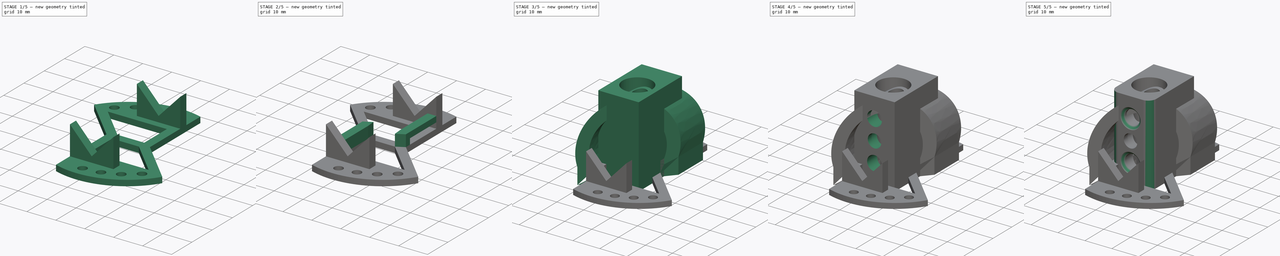
[diagram: build sequence overview — one tinted view per stage of 5, left to right]
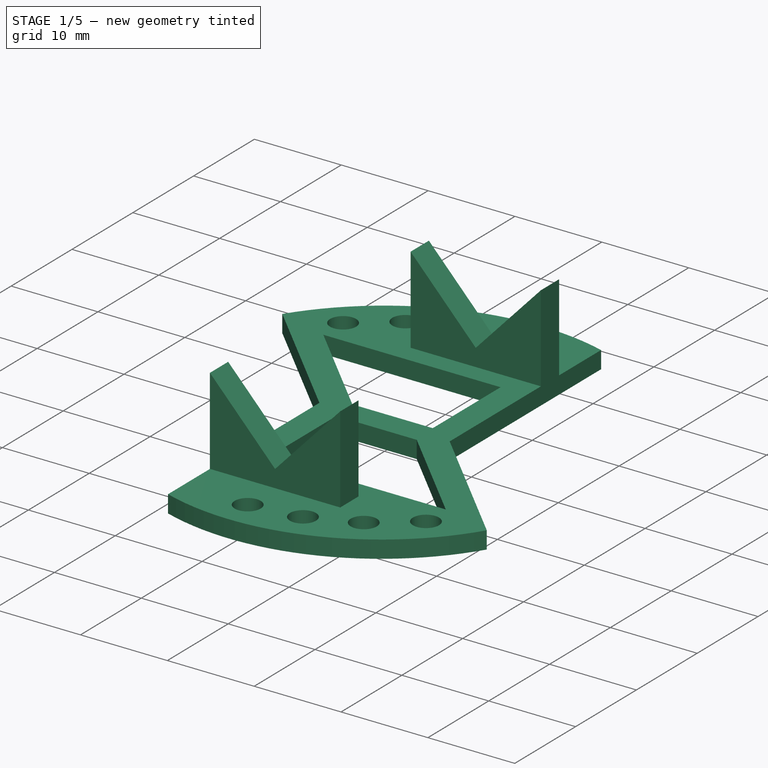
[diagram: stage 1 of 5 — iso view after this stage's code; geometry added in this stage tinted green]
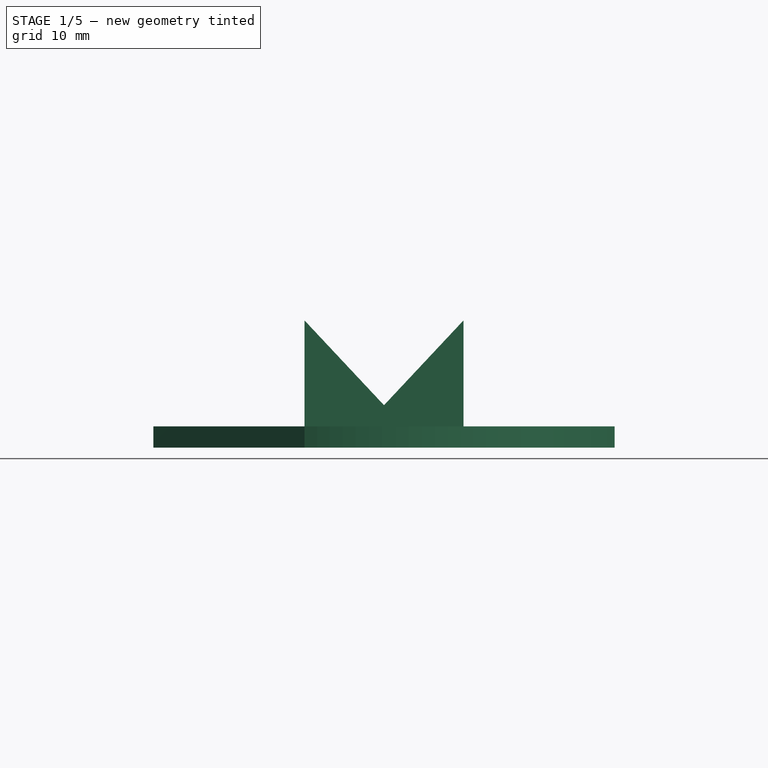
[diagram: stage 1 of 5 — front view after this stage's code; geometry added in this stage tinted green]
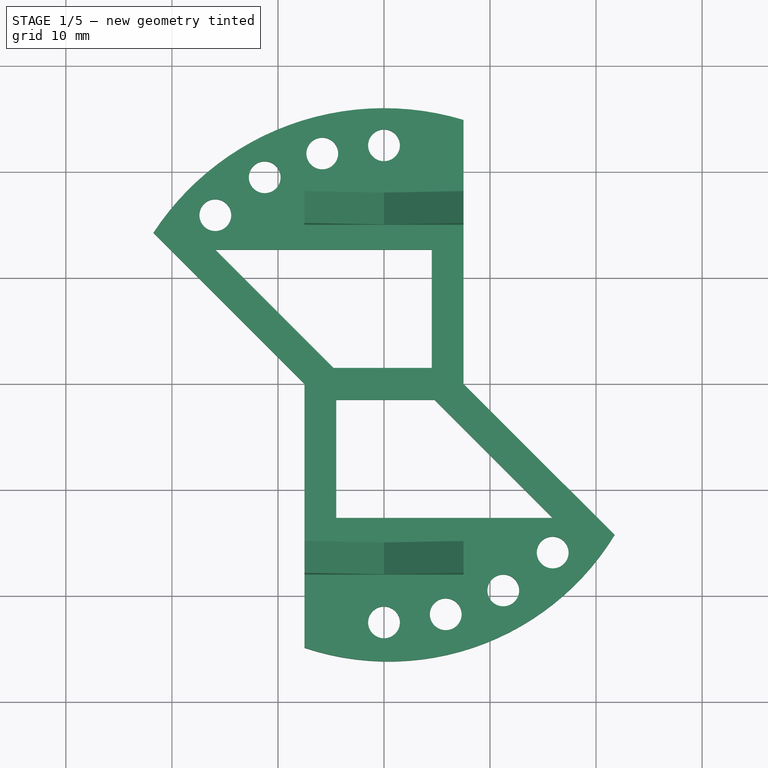
[diagram: stage 1 of 5 — top view after this stage's code; geometry added in this stage tinted green]
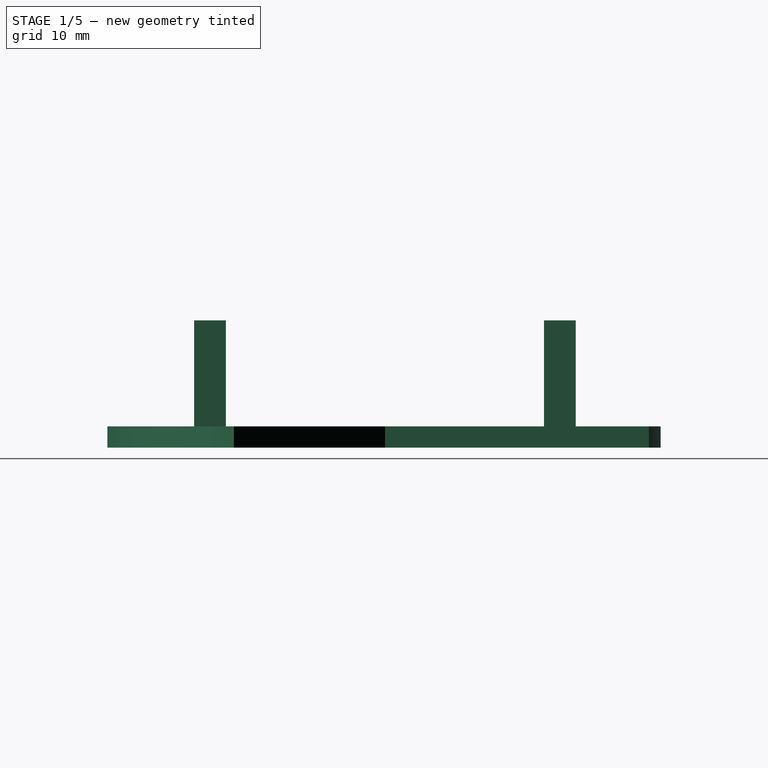
[diagram: stage 1 of 5 — right view after this stage's code; geometry added in this stage tinted green]
FCSTD DOCUMENT  (FreeCAD 0.19R24291 (Git))
Label: plotter-pen-holder-adj
License: All rights reserved
LicenseURL: http://en.wikipedia.org/wiki/All_rights_reserved
objects: Sketcher::SketchObject×14, PartDesign::Pocket×8, PartDesign::Pad×5, PartDesign::Fillet×2, PartDesign::Body×2, App::Part×2, PartDesign::Chamfer×1, PartDesign::Mirrored×1, PartDesign::Plane×1, PartDesign::AdditivePipe×1
note: 52 computed .brp shape members not serialized (recipe doc carries the construction recipe); baked Part::Feature solids carry a one-line shape summary decoded from their .brp

FEATURE [PartDesign::Body] Body
  Group = -> [Sketch,Pad,Sketch001,Pocket,Sketch002,Pocket001,Sketch003,Pocket002,Sketch004,Pocket003,Fillet,Chamfer,Fillet001]
  Origin = -> Origin001
  Tip = -> Fillet001
FEATURE [App::Part] Part  label="PenHolder90"
  Group = -> [Body]
  Origin = -> Origin
FEATURE [Sketcher::SketchObject] Sketch005
  FullyConstrained = true
  MapMode = 5
  Support = -> [XY_Plane003]
  sketch-geometry (28):
    g0: Circle CenterX=0 CenterY=0 CenterZ=0 NormalX=0 NormalY=0 NormalZ=1 AngleXU=0 Radius=22.5
    g1: Circle CenterX=2.7e-15 CenterY=22.5 CenterZ=0 NormalX=0 NormalY=0 NormalZ=1 AngleXU=0 Radius=1.5
    g2: Circle CenterX=-2.7e-15 CenterY=-22.5 CenterZ=0 NormalX=0 NormalY=0 NormalZ=1 AngleXU=0 Radius=1.5
    g3: Circle CenterX=5.82343 CenterY=-21.7333 CenterZ=0 NormalX=0 NormalY=0 NormalZ=1 AngleXU=0 Radius=1.5
    g4: Circle CenterX=11.25 CenterY=-19.4856 CenterZ=0 NormalX=0 NormalY=0 NormalZ=1 AngleXU=0 Radius=1.5
    g5: Circle CenterX=15.9099 CenterY=-15.9099 CenterZ=0 NormalX=0 NormalY=0 NormalZ=1 AngleXU=0 Radius=1.5
    g6: Circle CenterX=-5.82343 CenterY=21.7333 CenterZ=0 NormalX=0 NormalY=0 NormalZ=1 AngleXU=0 Radius=1.5
    g7: Circle CenterX=-11.25 CenterY=19.4856 CenterZ=0 NormalX=0 NormalY=0 NormalZ=1 AngleXU=0 Radius=1.5
    g8: Circle CenterX=-15.9099 CenterY=15.9099 CenterZ=0 NormalX=0 NormalY=0 NormalZ=1 AngleXU=0 Radius=1.5
    g9: LineSegment StartX=-5.82343 StartY=21.7333 StartZ=0 EndX=0 EndY=0 EndZ=0
    g10: LineSegment StartX=-11.25 StartY=19.4856 StartZ=0 EndX=0 EndY=0 EndZ=0
    g11: LineSegment StartX=-15.9099 StartY=15.9099 StartZ=0 EndX=0 EndY=0 EndZ=0
    g12: LineSegment StartX=2.7e-15 StartY=22.5 StartZ=0 EndX=0 EndY=0 EndZ=0
    g13: LineSegment StartX=7.5 StartY=24.8948 StartZ=0 EndX=7.5 EndY=0 EndZ=0
    g14: LineSegment StartX=7.5 StartY=0 StartZ=0 EndX=21.7483 EndY=-14.2483 EndZ=0
    g15: LineSegment StartX=-21.7483 StartY=14.2483 StartZ=0 EndX=-7.5 EndY=0 EndZ=0
    g16: LineSegment StartX=-7.5 StartY=0 StartZ=0 EndX=-7.5 EndY=-24.8948 EndZ=0
    g17: ArcOfCircle CenterX=0 CenterY=0 CenterZ=0 NormalX=0 NormalY=0 NormalZ=1 AngleXU=0 Radius=26 StartAngle=1.27818 EndAngle=2.56161
    g18: ArcOfCircle CenterX=0.431869 CenterY=-1.18644 CenterZ=0 NormalX=0 NormalY=0 NormalZ=1 AngleXU=0 Radius=25 StartAngle=4.38953 EndAngle=5.73344
    g19: LineSegment StartX=4.5 StartY=12.6525 StartZ=0 EndX=4.5 EndY=1.5 EndZ=0
    g20: LineSegment StartX=4.75736 StartY=-1.5 StartZ=0 EndX=15.9099 EndY=-12.6525 EndZ=0
    g21: LineSegment StartX=-15.9099 StartY=12.6525 StartZ=0 EndX=-4.75736 EndY=1.5 EndZ=0
    g22: LineSegment StartX=-4.5 StartY=-1.5 StartZ=0 EndX=-4.5 EndY=-12.6525 EndZ=0
    g23: LineSegment StartX=4.75736 StartY=-1.5 StartZ=0 EndX=-4.5 EndY=-1.5 EndZ=0
    g24: LineSegment StartX=-4.75736 StartY=1.5 StartZ=0 EndX=4.5 EndY=1.5 EndZ=0
    g25: LineSegment StartX=7.5 StartY=0 StartZ=0 EndX=5.37868 EndY=-2.12132 EndZ=0
    g26: LineSegment StartX=-15.9099 StartY=12.6525 StartZ=0 EndX=4.5 EndY=12.6525 EndZ=0
    g27: LineSegment StartX=-4.5 StartY=-12.6525 StartZ=0 EndX=15.9099 EndY=-12.6525 EndZ=0
  constraints (64):
    c: Coincident(g0,g-1)
    c: Diameter(g0) = 45
    c: PointOnObject(g1,g0)
    c: PointOnObject(g3,g0)
    c: PointOnObject(g4,g0)
    c: PointOnObject(g5,g0)
    c: Diameter(g1) = 3
    c: Equal(g1, g2-g8) x7
    c: Symmetric(g1,g2,g-1)
    c: Symmetric(g6,g3,g-1)
    c: Symmetric(g7,g4,g-1)
    c: Symmetric(g8,g5,g-1)
    c: Coincident(g9,g6)
    c: Coincident(g9,g-1)
    c: Coincident(g10,g7)
    c: Coincident(g10,g-1)
    c: Coincident(g11,g8)
    c: Coincident(g11,g-1)
    c: Angle(g-2,g9) = 0.261799
    c: Angle(g9,g10) = 0.261799
    c: Angle(g10,g11) = 0.261799
    c: Coincident(g12,g1)
    c: Coincident(g12,g-1)
    c: Angle(g12,g9) = 0.261799
    c: PointOnObject(g13,g-1)
    c: Vertical(g13)
    c: Coincident(g13,g14)
    c: Coincident(g15,g16)
    c: Coincident(g17,g13)
    c: Coincident(g18,g16)
    c: Coincident(g18,g14)
    c: Diameter(g17) = 52
    c: Diameter(g18) = 50
    c: Symmetric(g13,g16,g-1)
    c: Symmetric(g15,g14,g-1)
    c: Symmetric(g15,g13,g-1)
    c: DistanceX(g15,g13) = 15
    c: Coincident(g17,g-1)
    c: Coincident(g15,g17)
    c: Parallel(g11,g15)
    c: Vertical(g19)
    c: Symmetric(g21,g20,g17)
    c: Coincident(g23,g20)
    c: Coincident(g24,g21)
    c: Coincident(g19,g24)
    c: Coincident(g22,g23)
    c: PointOnObject(g25,g20)
    c: Coincident(g25,g13)
    c: Perpendicular(g14,g25)
    c: Distance(g25) = 3
    c: Horizontal(g24)
    c: Parallel(g20,g14)
    c: Symmetric(g20,g21,g17)
    c: DistanceX(g19,g13) = 3
    c: Symmetric(g19,g22,g17)
    c: DistanceY(g20,g19) = 3
    c: Coincident(g19,g26)
    c: Coincident(g22,g27)
    c: Vertical(g22)
    c: Coincident(g21,g26)
    c: Coincident(g20,g27)
    c: Horizontal(g27)
    c: Horizontal(g26)
    c: Vertical(g8,g21)
FEATURE [PartDesign::Pad] Pad001
  Direction = (1,1,1)
  Length = 2
  Length2 = 100
  Profile = -> Sketch005
  Type = 0
FEATURE [Sketcher::SketchObject] Sketch006
  ExternalGeometry = -> [Pad001]
  FullyConstrained = true
  MapMode = 5
  Placement = pos=(0,0,2) rot=(0,0,1;0rad)
  Support = -> [Pad001]
  sketch-geometry (4):
    g0: LineSegment StartX=-7.5 StartY=18 StartZ=0 EndX=7.5 EndY=18 EndZ=0
    g1: LineSegment StartX=7.5 StartY=18 StartZ=0 EndX=7.5 EndY=15 EndZ=0
    g2: LineSegment StartX=7.5 StartY=15 StartZ=0 EndX=-7.5 EndY=15 EndZ=0
    g3: LineSegment StartX=-7.5 StartY=15 StartZ=0 EndX=-7.5 EndY=18 EndZ=0
  constraints (12):
    c: Coincident(g0,g1)
    c: Coincident(g1,g2)
    c: Coincident(g2,g3)
    c: Coincident(g3,g0)
    c: Horizontal(g0)
    c: Horizontal(g2)
    c: Vertical(g1)
    c: Vertical(g3)
    c: Vertical(g1,g-3)
    c: Vertical(g2,g-4)
    c: DistanceY(g1,g1) = 3
    c: DistanceY(g-1,g1) = 15
FEATURE [PartDesign::Pad] Pad002
  BaseFeature = -> Pad001
  Direction = (1,1,1)
  Length = 10
  Length2 = 100
  Profile = -> Sketch006
  Type = 0
FEATURE [PartDesign::Mirrored] Mirrored
  BaseFeature = -> Pad002
  MirrorPlane = -> XZ_Plane003
  Originals = -> [Pad002]
FEATURE [Sketcher::SketchObject] Sketch007
  ExternalGeometry = -> [Mirrored]
  FullyConstrained = true
  MapMode = 5
  Placement = pos=(0,18,0) rot=(0,0.707107,0.707107;3.14159rad)
  Support = -> [Mirrored]
  sketch-geometry (3):
    g0: LineSegment StartX=-7.5 StartY=12 StartZ=0 EndX=0 EndY=4 EndZ=0
    g1: LineSegment StartX=0 StartY=4 StartZ=0 EndX=7.5 EndY=12 EndZ=0
    g2: LineSegment StartX=7.5 StartY=12 StartZ=0 EndX=-7.5 EndY=12 EndZ=0
  constraints (8):
    c: Coincident(g-3,g0)
    c: PointOnObject(g0,g-2)
    c: Coincident(g0,g1)
    c: Coincident(g1,g-3)
    c: Coincident(g1,g2)
    c: PointOnObject(g2,g0)
    c: Horizontal(g2)
    c: DistanceY(g0,g1) = 8
FEATURE [PartDesign::Pocket] Pocket004
  BaseFeature = -> Mirrored
  Length = 5
  Length2 = 100
  Profile = -> Sketch007
  Type = 1
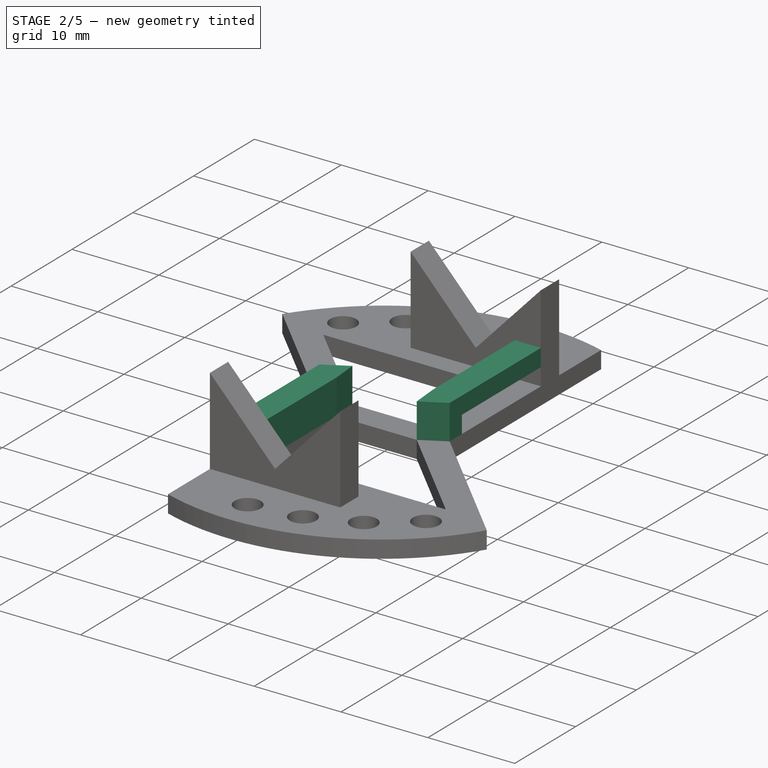
[diagram: stage 2 of 5 — iso view after this stage's code; geometry added in this stage tinted green]
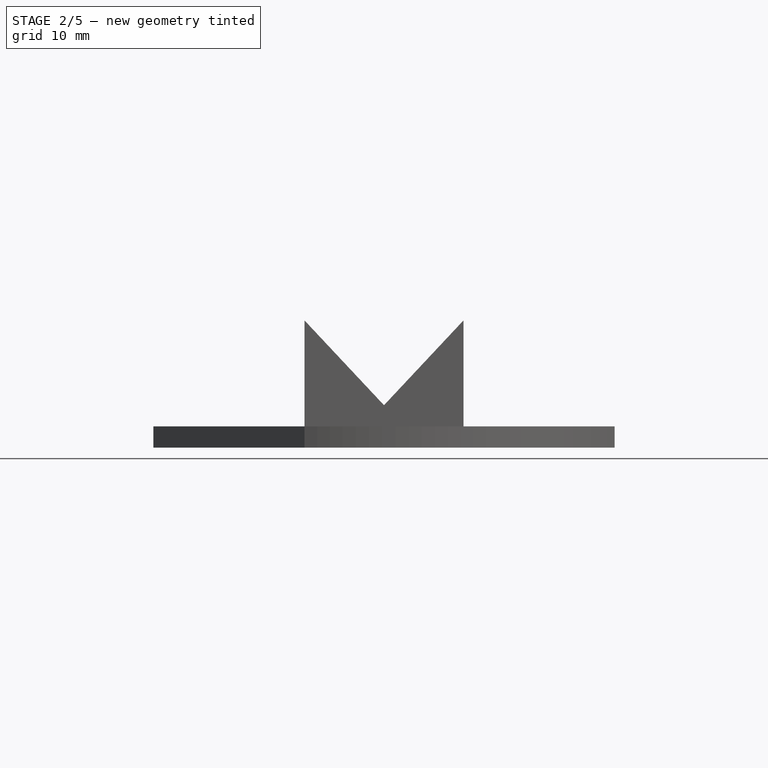
[diagram: stage 2 of 5 — front view after this stage's code; geometry added in this stage tinted green]
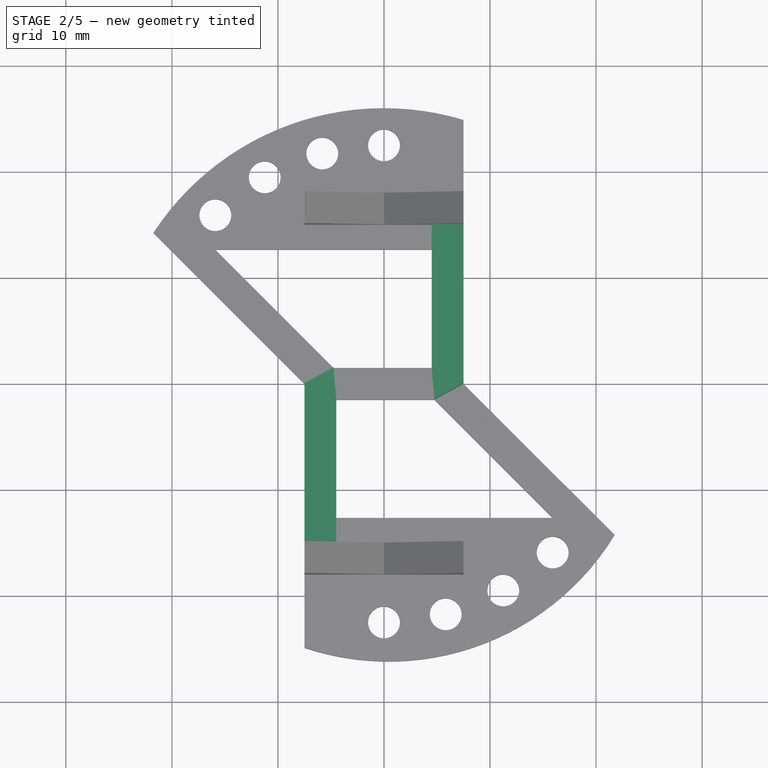
[diagram: stage 2 of 5 — top view after this stage's code; geometry added in this stage tinted green]
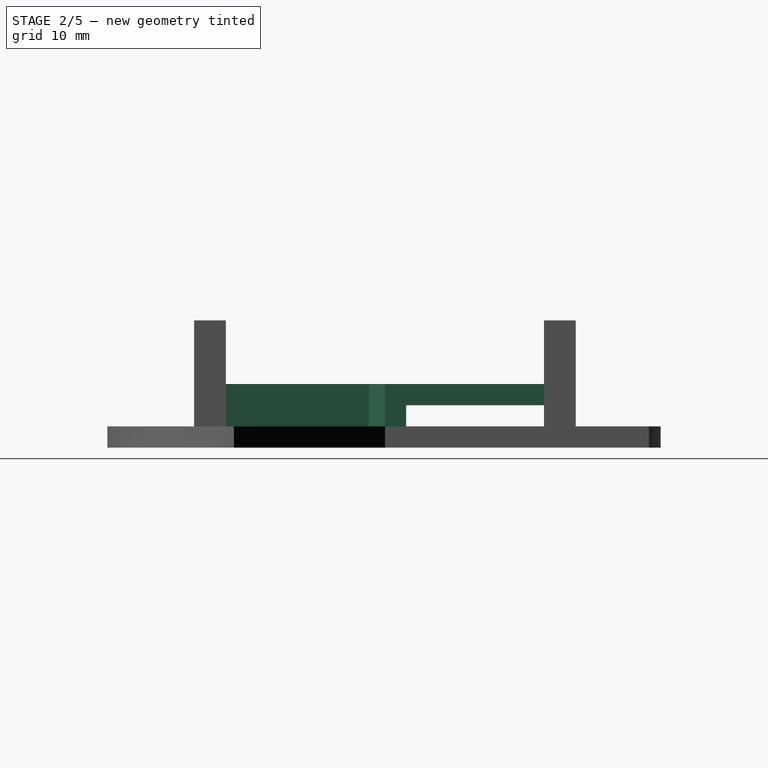
[diagram: stage 2 of 5 — right view after this stage's code; geometry added in this stage tinted green]
FEATURE [Sketcher::SketchObject] Sketch008
  ExternalGeometry = -> [Pocket004]
  FullyConstrained = true
  MapMode = 5
  Placement = pos=(0,0,2) rot=(0,0,1;0rad)
  Support = -> [Pocket004]
  sketch-geometry (5):
    g0: LineSegment StartX=4.5 StartY=15 StartZ=0 EndX=7.5 EndY=15 EndZ=0
    g1: LineSegment StartX=7.5 StartY=15 StartZ=0 EndX=7.5 EndY=0 EndZ=0
    g2: LineSegment StartX=7.5 StartY=0 StartZ=0 EndX=4.75736 EndY=-1.5 EndZ=0
    g3: LineSegment StartX=4.75736 StartY=-1.5 StartZ=0 EndX=4.5 EndY=1.5 EndZ=0
    g4: LineSegment StartX=4.5 StartY=1.5 StartZ=0 EndX=4.5 EndY=15 EndZ=0
  constraints (11):
    c: Coincident(g2,g3)
    c: Coincident(g0,g-4)
    c: Coincident(g3,g4)
    c: Coincident(g3,g-3)
    c: Coincident(g1,g2)
    c: Coincident(g1,g-4)
    c: Coincident(g2,g-5)
    c: Coincident(g0,g4)
    c: Horizontal(g0)
    c: PointOnObject(g-3,g4)
    c: Coincident(g0,g1)
FEATURE [PartDesign::Pad] Pad003
  BaseFeature = -> Pocket004
  Direction = (1,1,1)
  Length = 4
  Length2 = 100
  Profile = -> Sketch008
  Type = 0
FEATURE [Sketcher::SketchObject] Sketch009
  ExternalGeometry = -> [Pad003]
  FullyConstrained = true
  MapMode = 5
  Placement = pos=(7.5,0,0) rot=(0.57735,0.57735,0.57735;2.0944rad)
  Support = -> [Pad003]
  sketch-geometry (4):
    g0: LineSegment StartX=15 StartY=2 StartZ=0 EndX=2 EndY=2 EndZ=0
    g1: LineSegment StartX=2 StartY=2 StartZ=0 EndX=2 EndY=4 EndZ=0
    g2: LineSegment StartX=2 StartY=4 StartZ=0 EndX=15 EndY=4 EndZ=0
    g3: LineSegment StartX=15 StartY=4 StartZ=0 EndX=15 EndY=2 EndZ=0
  constraints (11):
    c: Coincident(g0,g1)
    c: Coincident(g1,g2)
    c: Coincident(g2,g3)
    c: Coincident(g3,g0)
    c: Horizontal(g0)
    c: Horizontal(g2)
    c: Vertical(g1)
    c: Vertical(g3)
    c: Coincident(g0,g-4)
    c: DistanceY(g3,g3) = 2
    c: DistanceX(g2,g2) = 13
FEATURE [PartDesign::Pocket] Pocket005
  BaseFeature = -> Pad003
  Length = 5
  Length2 = 100
  Profile = -> Sketch009
  Type = 2
FEATURE [Sketcher::SketchObject] Sketch010
  ExternalGeometry = -> [Pocket005]
  FullyConstrained = true
  MapMode = 5
  Placement = pos=(0,0,2) rot=(0,0,1;0rad)
  Support = -> [Pocket005]
  sketch-geometry (5):
    g0: LineSegment StartX=-4.75736 StartY=1.5 StartZ=0 EndX=-7.5 EndY=0 EndZ=0
    g1: LineSegment StartX=-7.5 StartY=0 StartZ=0 EndX=-7.5 EndY=-15 EndZ=0
    g2: LineSegment StartX=-7.5 StartY=-15 StartZ=0 EndX=-4.5 EndY=-15 EndZ=0
    g3: LineSegment StartX=-4.5 StartY=-15 StartZ=0 EndX=-4.5 EndY=-1.5 EndZ=0
    g4: LineSegment StartX=-4.5 StartY=-1.5 StartZ=0 EndX=-4.75736 EndY=1.5 EndZ=0
  constraints (11):
    c: Coincident(g-6,g0)
    c: Coincident(g0,g-5)
    c: Coincident(g0,g1)
    c: Coincident(g1,g-5)
    c: Coincident(g1,g2)
    c: Horizontal(g2)
    c: Coincident(g2,g3)
    c: Coincident(g3,g-4)
    c: Vertical(g3)
    c: Coincident(g3,g4)
    c: Coincident(g4,g0)
FEATURE [PartDesign::Pad] Pad004
  BaseFeature = -> Pocket005
  Direction = (1,1,1)
  Length = 4
  Length2 = 100
  Profile = -> Sketch010
  Type = 0
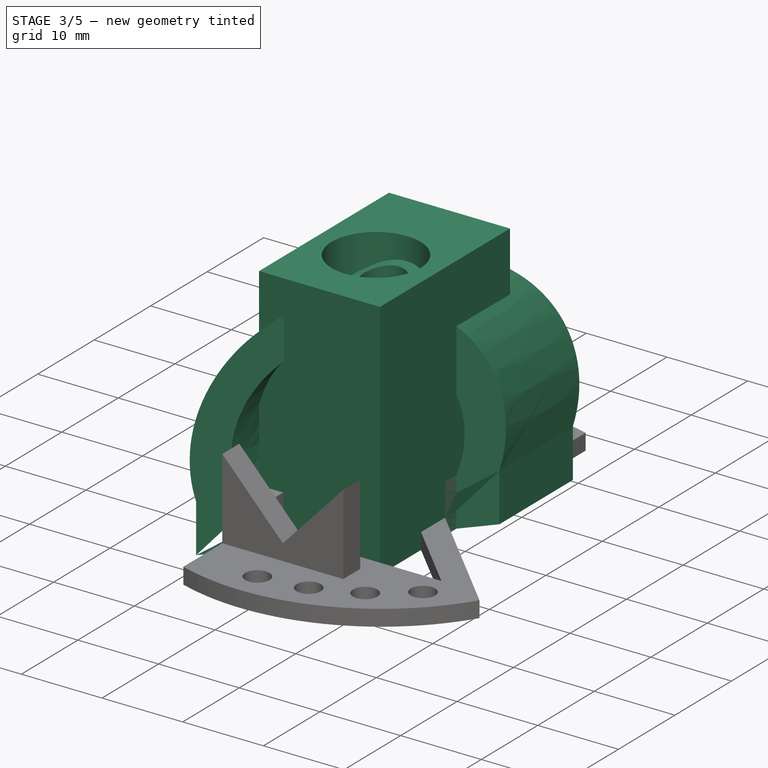
[diagram: stage 3 of 5 — iso view after this stage's code; geometry added in this stage tinted green]
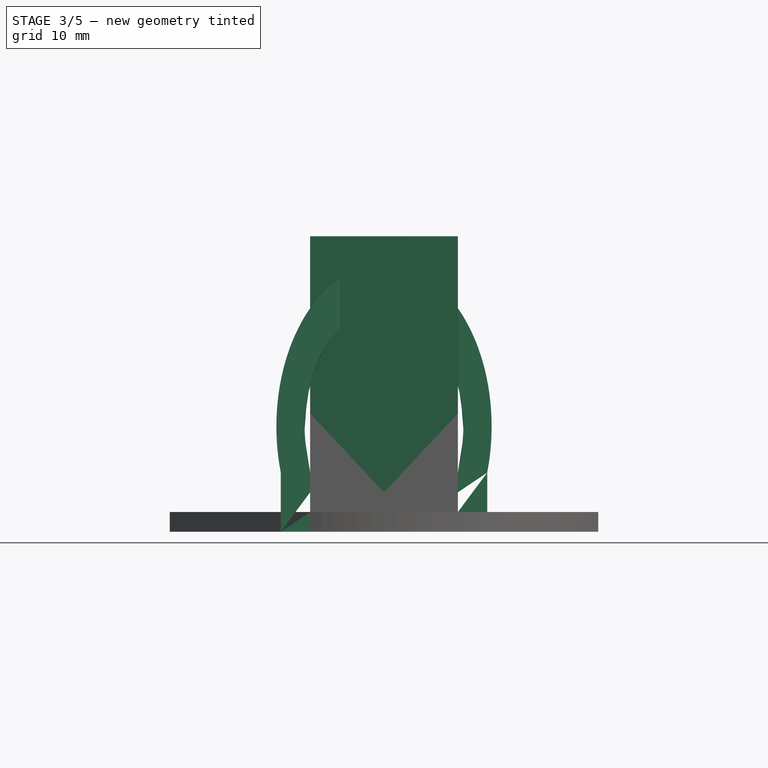
[diagram: stage 3 of 5 — front view after this stage's code; geometry added in this stage tinted green]
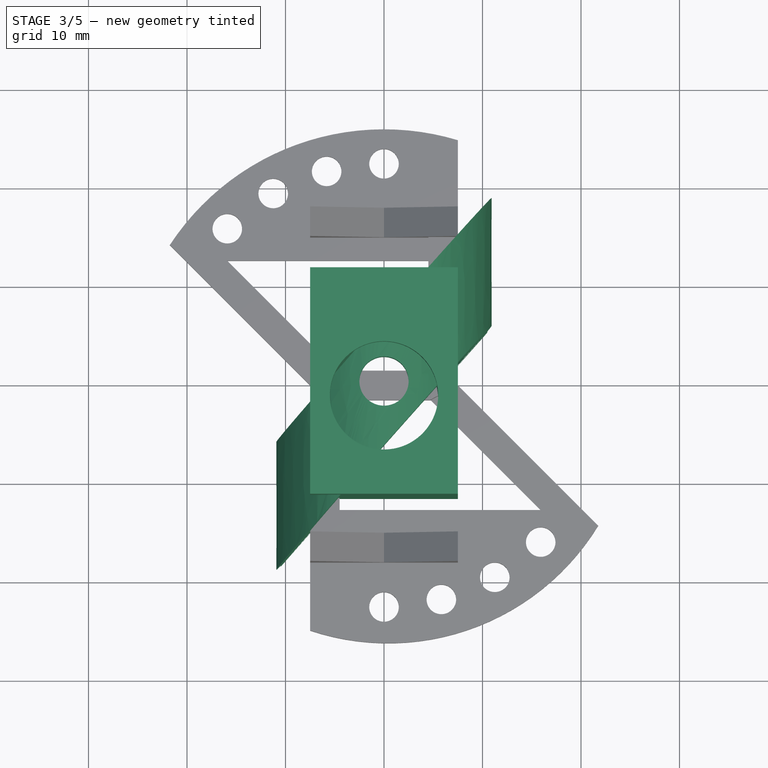
[diagram: stage 3 of 5 — top view after this stage's code; geometry added in this stage tinted green]
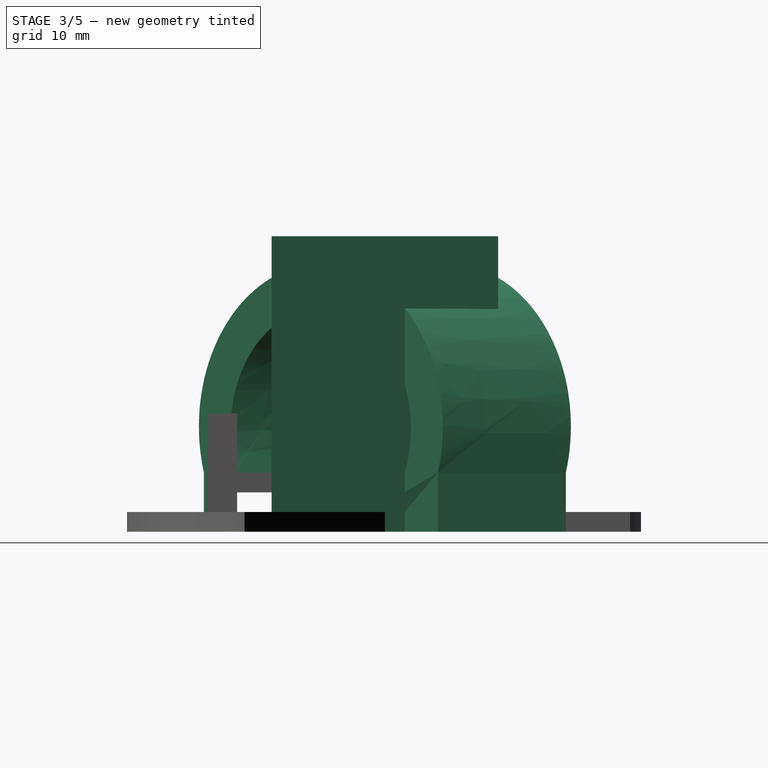
[diagram: stage 3 of 5 — right view after this stage's code; geometry added in this stage tinted green]
FEATURE [Sketcher::SketchObject] Sketch
  FullyConstrained = true
  MapMode = 5
  Support = -> [XY_Plane001]
  expr: Constraints[12] = 4.5 + 11 / 2
  expr: Constraints[13] = 7.5 + 11 / 2
  sketch-geometry (5):
    g0: LineSegment StartX=-7.5 StartY=11.5 StartZ=0 EndX=7.5 EndY=11.5 EndZ=0
    g1: LineSegment StartX=7.5 StartY=11.5 StartZ=0 EndX=7.5 EndY=-11.5 EndZ=0
    g2: LineSegment StartX=7.5 StartY=-11.5 StartZ=0 EndX=-7.5 EndY=-11.5 EndZ=0
    g3: LineSegment StartX=-7.5 StartY=-11.5 StartZ=0 EndX=-7.5 EndY=11.5 EndZ=0
    g4: Circle CenterX=0 CenterY=-1.5 CenterZ=0 NormalX=0 NormalY=0 NormalZ=1 AngleXU=0 Radius=5.5
  constraints (14):
    c: Coincident(g0,g1)
    c: Coincident(g1,g2)
    c: Coincident(g2,g3)
    c: Coincident(g3,g0)
    c: Horizontal(g0)
    c: Horizontal(g2)
    c: Vertical(g1)
    c: Vertical(g3)
    c: Symmetric(g0,g2,g-1)
    c: DistanceX(g0,g0) = 15
    c: PointOnObject(g4,g-2)
    c: Diameter(g4) = 11
    c: DistanceY(g2,g4) = 10
    c: DistanceY(g4,g0) = 13
FEATURE [PartDesign::Pad] Pad
  Direction = (1,1,1)
  Length = 30
  Length2 = 100
  Profile = -> Sketch
  Type = 0
FEATURE [Sketcher::SketchObject] Sketch011
  ExternalGeometry = -> [Pad004]
  FullyConstrained = true
  MapMode = 5
  Placement = pos=(-7.5,-4e-16,0) rot=(0.57735,-0.57735,-0.57735;2.0944rad)
  Support = -> [Pad004]
  sketch-geometry (4):
    g0: LineSegment StartX=15 StartY=2 StartZ=0 EndX=2 EndY=2 EndZ=0
    g1: LineSegment StartX=2 StartY=2 StartZ=0 EndX=2 EndY=4 EndZ=0
    g2: LineSegment StartX=2 StartY=4 StartZ=0 EndX=15 EndY=4 EndZ=0
    g3: LineSegment StartX=15 StartY=4 StartZ=0 EndX=15 EndY=2 EndZ=0
  constraints (11):
    c: Coincident(g0,g1)
    c: Coincident(g1,g2)
    c: Coincident(g2,g3)
    c: Coincident(g3,g0)
    c: Horizontal(g0)
    c: Horizontal(g2)
    c: Vertical(g1)
    c: Vertical(g3)
    c: Coincident(g0,g-4)
    c: DistanceY(g3,g3) = 2
    c: DistanceX(g2,g2) = 13
FEATURE [PartDesign::Pocket] Pocket006
  BaseFeature = -> Pad004
  Length = 5
  Length2 = 100
  Profile = -> Sketch011
  Type = 2
FEATURE [PartDesign::Plane] DatumPlane
  Length = 84.4889
  MapMode = 13
  Placement = pos=(2.5,-3.66667,3.33333) rot=(-0.303994,0.673642,0.673642;3.73183rad)
  ResizeMode = 0
  Support = -> [Pocket006]
  Width = 64.4749
FEATURE [Sketcher::SketchObject] Sketch012
  ExternalGeometry = -> [Pocket006]
  FullyConstrained = true
  MapMode = 5
  Placement = pos=(2.5,-3.66667,3.33333) rot=(-0.303994,0.673642,0.673642;3.73183rad)
  Support = -> [DatumPlane]
  sketch-geometry (9):
    g0: LineSegment StartX=-12.0572 StartY=-3.33333 StartZ=0 EndX=-12.0572 EndY=2.66667 EndZ=0
    g1: LineSegment StartX=19.6144 StartY=-3.33333 StartZ=0 EndX=19.6144 EndY=2.66667 EndZ=0
    g2: ArcOfCircle CenterX=3.77859 CenterY=7.34936 CenterZ=0 NormalX=0 NormalY=0 NormalZ=1 AngleXU=0 Radius=16.5136 StartAngle=5.99568 EndAngle=9.71229
    g3: LineSegment StartX=-7.55719 StartY=2.66667 StartZ=0 EndX=-7.55719 EndY=-3.33333 EndZ=0
    g4: LineSegment StartX=19.6144 StartY=-3.33333 StartZ=0 EndX=15.1144 EndY=-3.33333 EndZ=0
    g5: LineSegment StartX=15.1144 StartY=-3.33333 StartZ=0 EndX=15.1144 EndY=2.66667 EndZ=0
    g6: LineSegment StartX=-7.55719 StartY=-3.33333 StartZ=0 EndX=-12.0572 EndY=-3.33333 EndZ=0
    g7: ArcOfCircle CenterX=3.77859 CenterY=7.16667 CenterZ=0 NormalX=0 NormalY=0 NormalZ=1 AngleXU=0 Radius=12.1963 StartAngle=5.90529 EndAngle=9.80267
    g8: LineSegment StartX=3.77859 StartY=23.863 StartZ=0 EndX=3.77859 EndY=19.363 EndZ=0
  constraints (29):
    c: PointOnObject(g1,g-3)
    c: PointOnObject(g0,g-3)
    c: Vertical(g0)
    c: Vertical(g1)
    c: Coincident(g2,g0)
    c: Coincident(g2,g1)
    c: Vertical(g3)
    c: Coincident(g4,g1)
    c: PointOnObject(g4,g-3)
    c: Coincident(g5,g4)
    c: Vertical(g5)
    c: Coincident(g6,g3)
    c: Coincident(g6,g0)
    c: Horizontal(g6)
    c: Coincident(g7,g3)
    c: Coincident(g7,g5)
    c: Horizontal(g-5,g3)
    c: Horizontal(g3,g0)
    c: Horizontal(g-7,g1)
    c: Coincident(g5,g-7)
    c: DistanceX(g4,g4) = 4.5
    c: Vertical(g3,g-8)
    c: DistanceX(g6,g6) = 4.5
    c: PointOnObject(g8,g2)
    c: PointOnObject(g8,g7)
    c: Vertical(g8)
    c: Perpendicular(g7,g8)
    c: Distance(g8) = 4.5
    c: DistanceY(g5,g7) = 4.5
FEATURE [PartDesign::AdditivePipe] AdditivePipe
  AuxilleryCurvelinear = true
  AuxillerySpineTangent = false
  BaseFeature = -> Pocket006
  Binormal = (0,0,0)
  Mode = 0
  Profile = -> Sketch012
  Spine = -> Pocket006 [Edge10]
  SpineTangent = false
  Transformation = 0
  Transition = 0
FEATURE [Sketcher::SketchObject] Sketch013
  FullyConstrained = true
  MapMode = 5
  Placement = pos=(0,0,2) rot=(0,0,1;0rad)
  Support = -> [AdditivePipe]
  sketch-geometry (1):
    g0: Circle CenterX=0 CenterY=0 CenterZ=0 NormalX=0 NormalY=0 NormalZ=1 AngleXU=0 Radius=2.5
  constraints (2):
    c: Coincident(g0,g-1)
    c: Diameter(g0) = 5
FEATURE [PartDesign::Pocket] Pocket007
  BaseFeature = -> AdditivePipe
  Length = 5
  Length2 = 100
  Profile = -> Sketch013
  Reversed = true
  Type = 1
FEATURE [PartDesign::Body] Body001
  Group = -> [Sketch005,Pad001,Sketch006,Pad002,Mirrored,Sketch007,Pocket004,Sketch008,Pad003,Sketch009,Pocket005,Sketch010,Pad004,Sketch011,Pocket006,DatumPlane,Sketch012,AdditivePipe,Sketch013,Pocket007]
  Origin = -> Origin003
  Tip = -> Pocket007
FEATURE [App::Part] Part001  label="PlotterPenHolder"
  Group = -> [Body001]
  Origin = -> Origin002
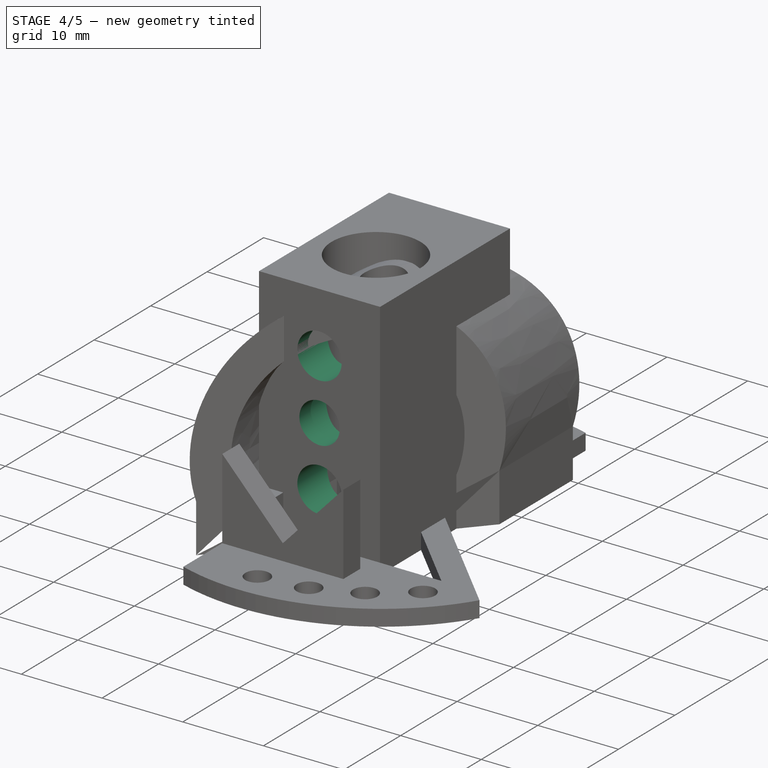
[diagram: stage 4 of 5 — iso view after this stage's code; geometry added in this stage tinted green]
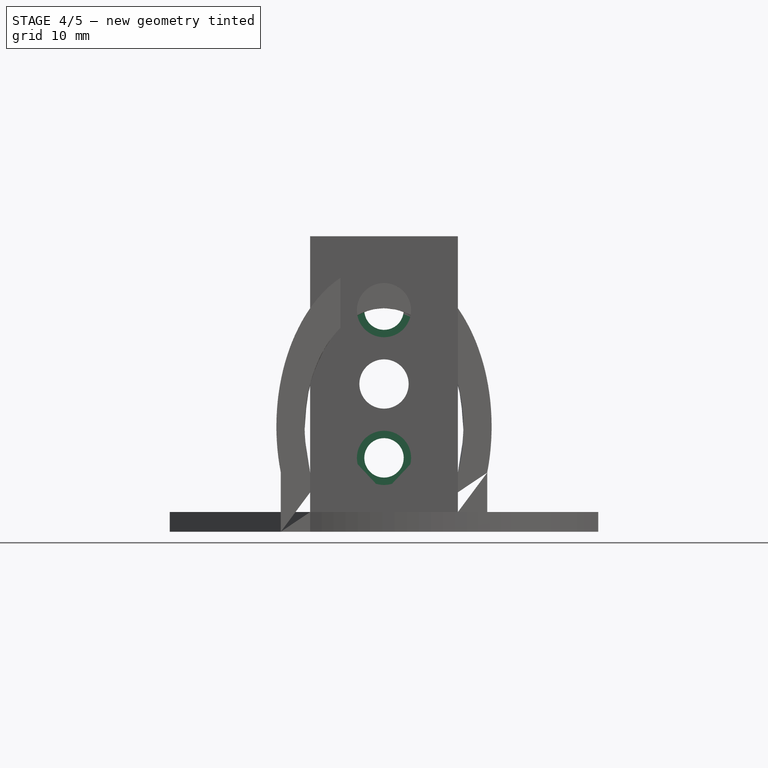
[diagram: stage 4 of 5 — front view after this stage's code; geometry added in this stage tinted green]
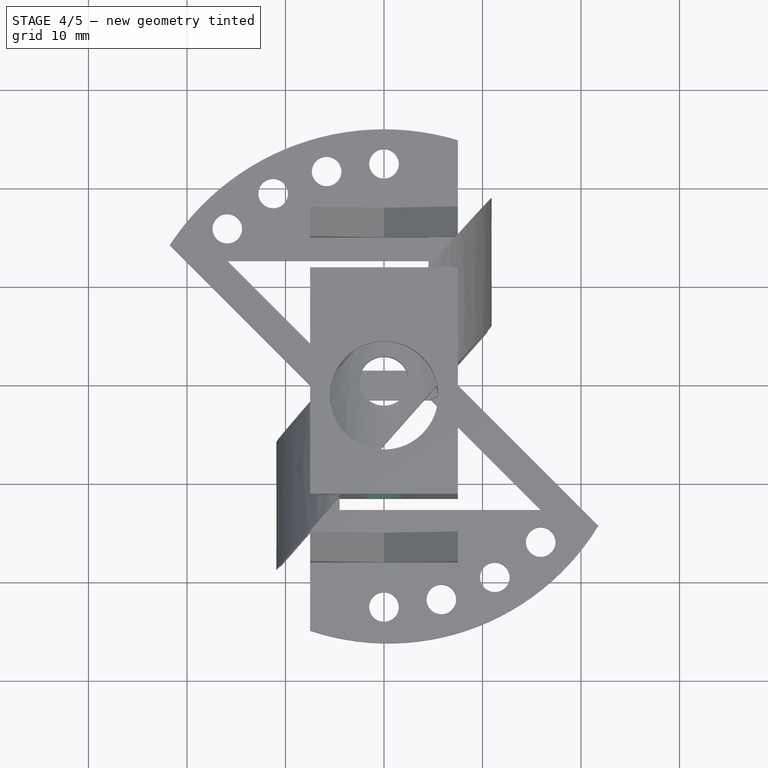
[diagram: stage 4 of 5 — top view after this stage's code; geometry added in this stage tinted green]
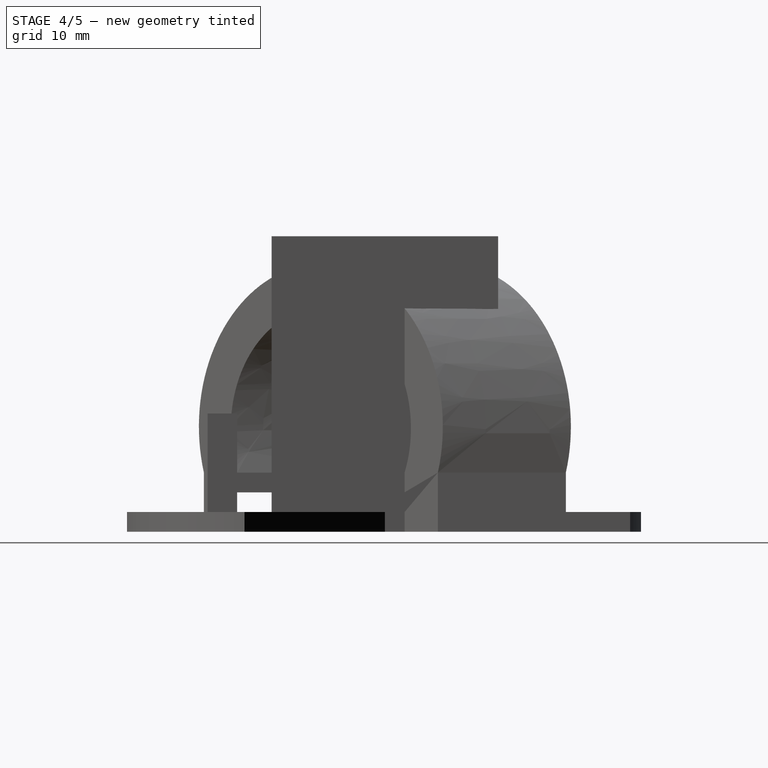
[diagram: stage 4 of 5 — right view after this stage's code; geometry added in this stage tinted green]
FEATURE [Sketcher::SketchObject] Sketch001
  ExternalGeometry = -> [Pad]
  FullyConstrained = true
  MapMode = 5
  Placement = pos=(0,11.5,0) rot=(0,0.707107,0.707107;3.14159rad)
  Support = -> [Pad]
  sketch-geometry (3):
    g0: Circle CenterX=0 CenterY=7.5 CenterZ=0 NormalX=0 NormalY=0 NormalZ=1 AngleXU=0 Radius=2
    g1: Circle CenterX=0 CenterY=22.5 CenterZ=0 NormalX=0 NormalY=0 NormalZ=1 AngleXU=0 Radius=2
    g2: Circle CenterX=0 CenterY=15 CenterZ=0 NormalX=0 NormalY=0 NormalZ=1 AngleXU=0 Radius=2.5
  constraints (9):
    c: PointOnObject(g0,g-2)
    c: PointOnObject(g2,g-2)
    c: Diameter(g1) = 4
    c: Equal(g1,g0)
    c: Diameter(g2) = 5
    c: DistanceY(g0,g1) = 15
    c: DistanceY(g2,g-3) = 15
    c: DistanceY(g1,g-3) = 7.5
    c: Vertical(g1,g0)
FEATURE [PartDesign::Pocket] Pocket
  BaseFeature = -> Pad
  Length = 5
  Length2 = 100
  Profile = -> Sketch001
  Type = 1
FEATURE [Sketcher::SketchObject] Sketch002
  ExternalGeometry = -> [Pocket]
  FullyConstrained = true
  MapMode = 5
  Placement = pos=(0,-11.5,0) rot=(1,0,0;1.5708rad)
  Support = -> [Pocket]
  sketch-geometry (2):
    g0: Circle CenterX=0 CenterY=22.5 CenterZ=0 NormalX=0 NormalY=0 NormalZ=1 AngleXU=0 Radius=2.75
    g1: Circle CenterX=0 CenterY=7.5 CenterZ=0 NormalX=0 NormalY=0 NormalZ=1 AngleXU=0 Radius=2.75
  constraints (4):
    c: Coincident(g0,g-3)
    c: Coincident(g1,g-4)
    c: Diameter(g0) = 5.5
    c: Equal(g0,g1)
FEATURE [PartDesign::Pocket] Pocket001
  BaseFeature = -> Pocket
  Length = 18.5
  Length2 = 100
  Profile = -> Sketch002
  Type = 0
  expr: Length = 11 + 4.5 + 3
FEATURE [Sketcher::SketchObject] Sketch003
  ExternalGeometry = -> [Pocket001]
  FullyConstrained = true
  MapMode = 5
  Placement = pos=(0,11.5,0) rot=(0,0.707107,0.707107;3.14159rad)
  Support = -> [Pocket001]
  sketch-geometry (1):
    g0: Circle CenterX=0 CenterY=15 CenterZ=0 NormalX=0 NormalY=0 NormalZ=1 AngleXU=0 Radius=3
  constraints (2):
    c: Coincident(g0,g-3)
    c: Diameter(g0) = 6
FEATURE [PartDesign::Pocket] Pocket002
  BaseFeature = -> Pocket001
  Length = 21
  Length2 = 100
  Profile = -> Sketch003
  Type = 0
  expr: Length = 7.5 + 11 + 2.5
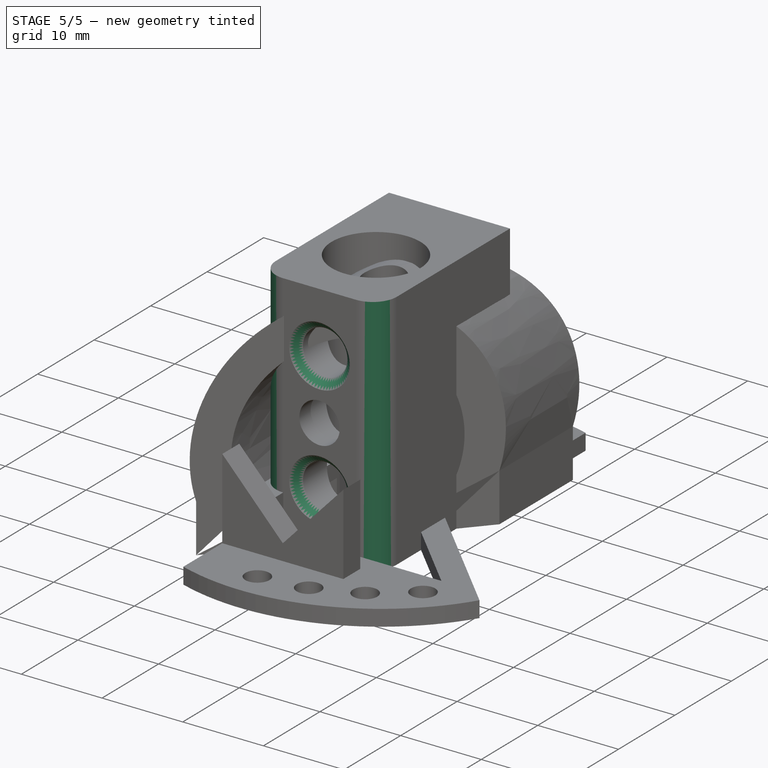
[diagram: stage 5 of 5 — iso view after this stage's code; geometry added in this stage tinted green]
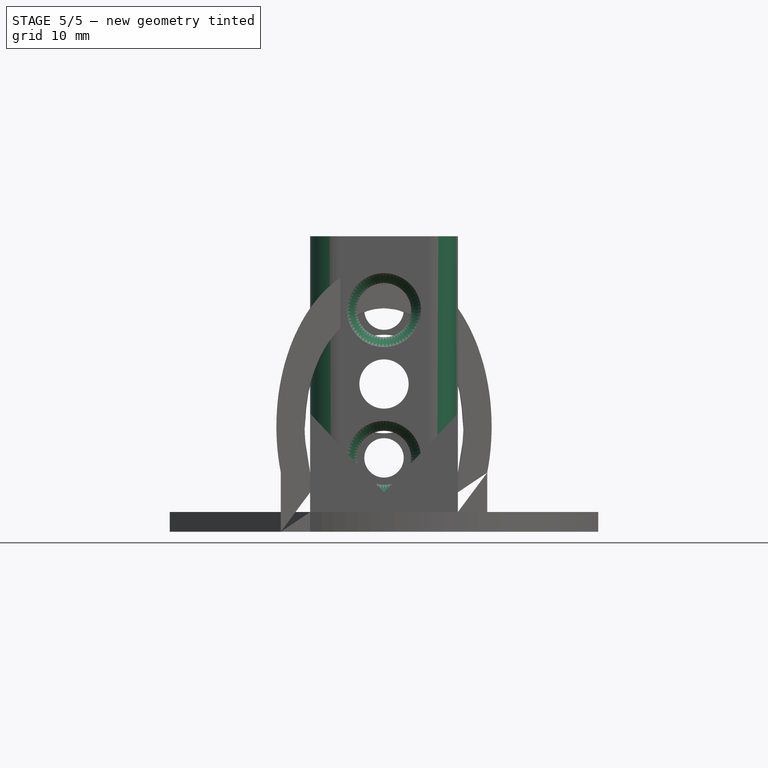
[diagram: stage 5 of 5 — front view after this stage's code; geometry added in this stage tinted green]
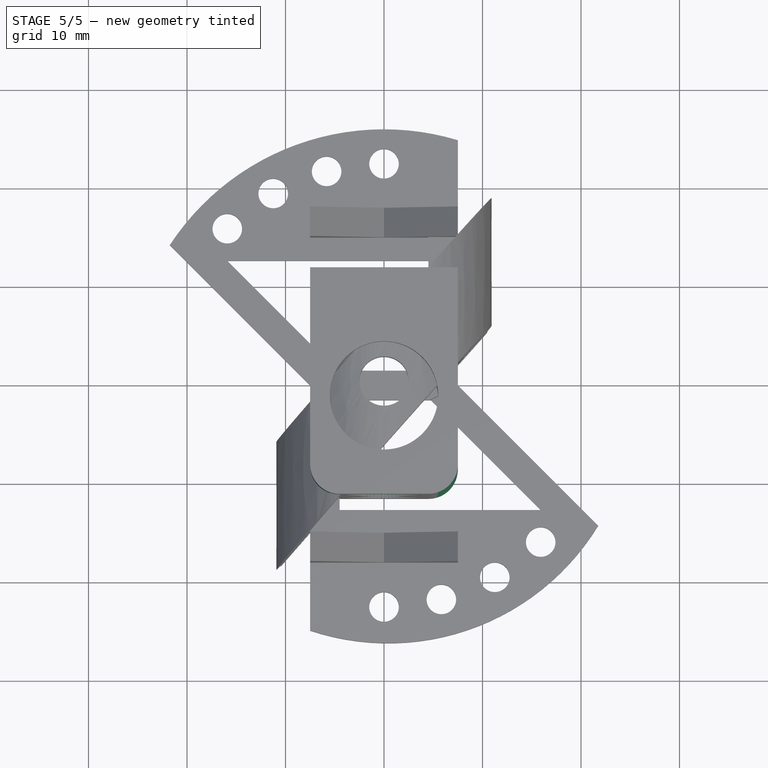
[diagram: stage 5 of 5 — top view after this stage's code; geometry added in this stage tinted green]
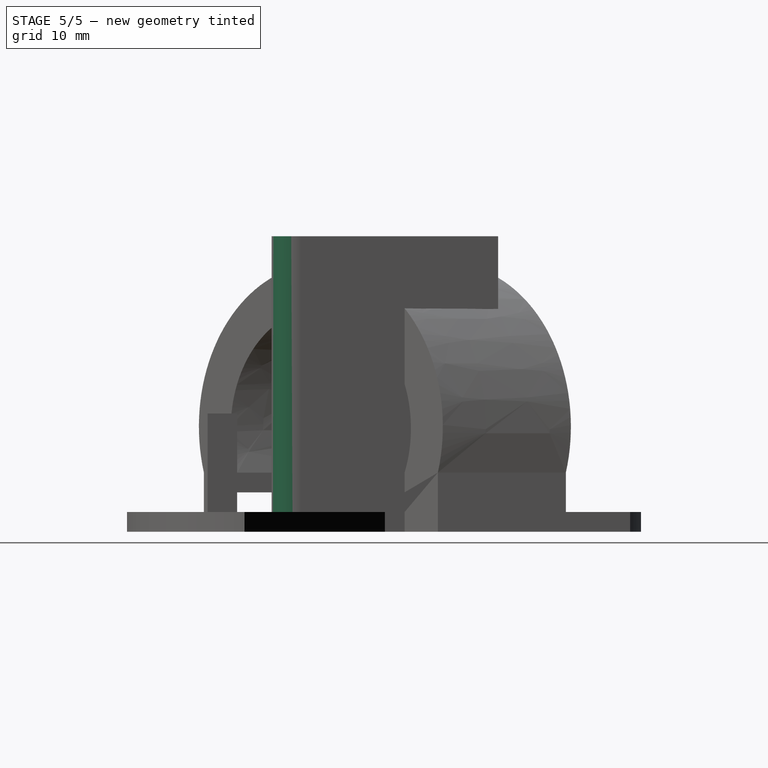
[diagram: stage 5 of 5 — right view after this stage's code; geometry added in this stage tinted green]
FEATURE [Sketcher::SketchObject] Sketch004
  ExternalGeometry = -> [Pocket002]
  FullyConstrained = true
  MapMode = 5
  Placement = pos=(0,11.5,0) rot=(0,0.707107,0.707107;3.14159rad)
  Support = -> [Pocket002]
  sketch-geometry (1):
    g0: Circle CenterX=0 CenterY=15 CenterZ=0 NormalX=0 NormalY=0 NormalZ=1 AngleXU=0 Radius=5
  constraints (2):
    c: Coincident(g0,g-3)
    c: Diameter(g0) = 10
FEATURE [PartDesign::Pocket] Pocket003
  BaseFeature = -> Pocket002
  Length = 13
  Length2 = 100
  Profile = -> Sketch004
  Type = 0
  expr: Length = 7.5 + 11 / 2
FEATURE [PartDesign::Fillet] Fillet
  Base = -> Pocket003 [Edge22,Edge24,Edge28,Edge26,Edge29,Edge25]
  BaseFeature = -> Pocket003
  Radius = 1
  SupportTransform = false
FEATURE [PartDesign::Chamfer] Chamfer
  Angle = 45
  Base = -> Fillet [Edge74,Edge70]
  BaseFeature = -> Fillet
  ChamferType = 0
  FlipDirection = false
  Size = 1
  Size2 = 1
  SupportTransform = false
FEATURE [PartDesign::Fillet] Fillet001
  Base = -> Chamfer [Edge26,Edge23]
  BaseFeature = -> Chamfer
  Radius = 3
  SupportTransform = false
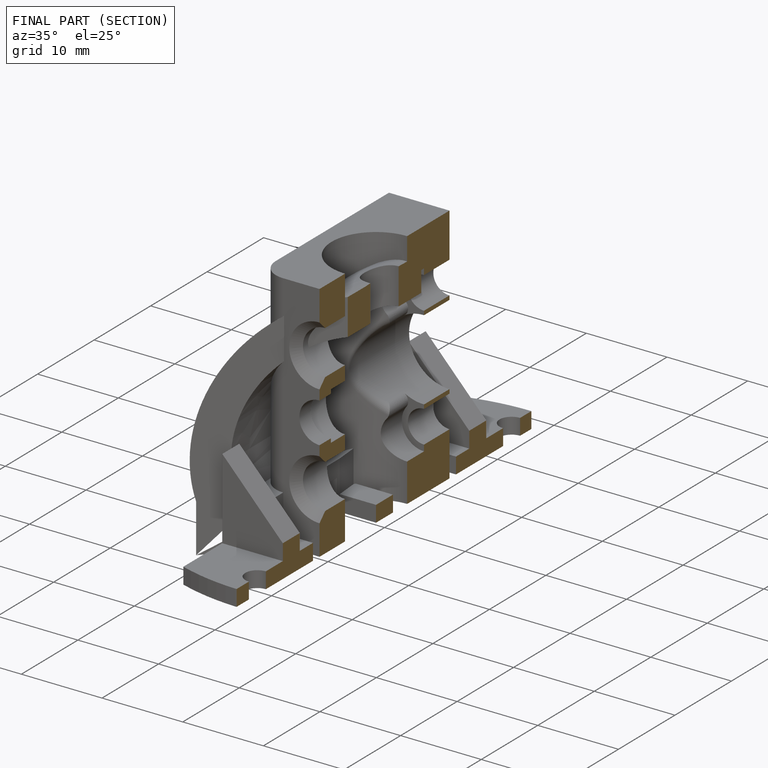
[diagram: finished part — half-section view (interior)]
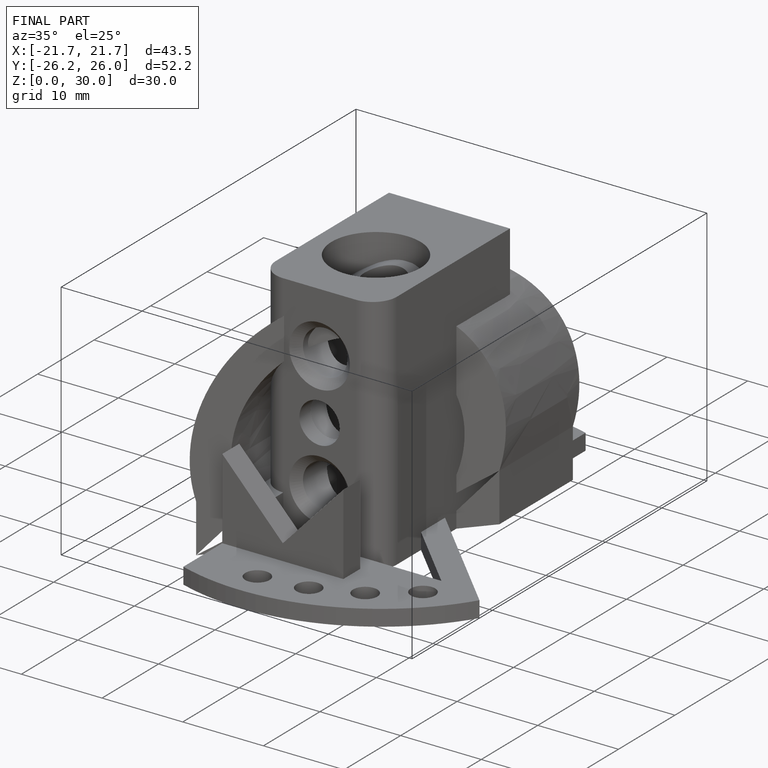
[diagram: finished part — iso view with bounding-box wireframe]
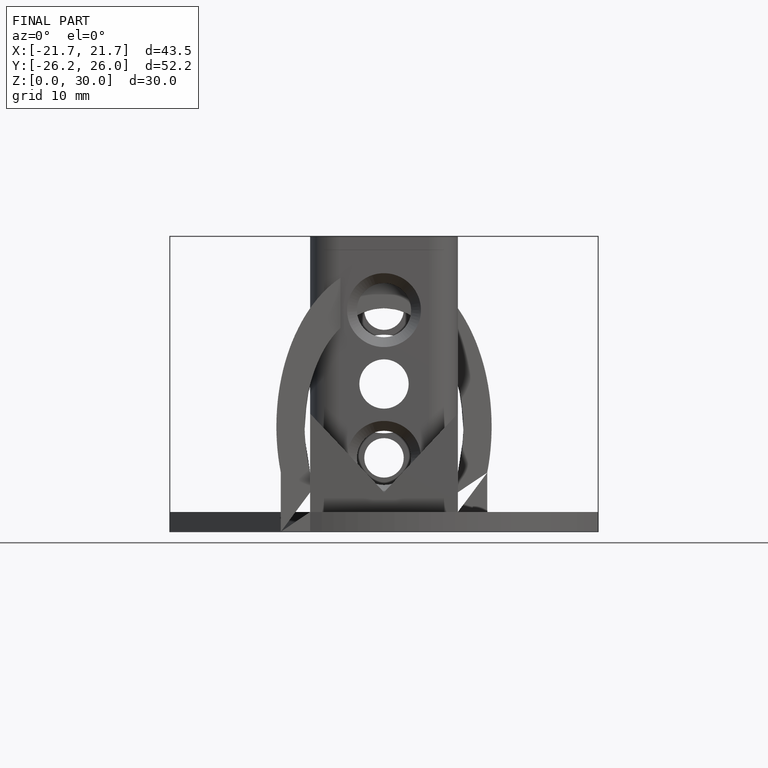
[diagram: finished part — front view with bounding-box wireframe]
